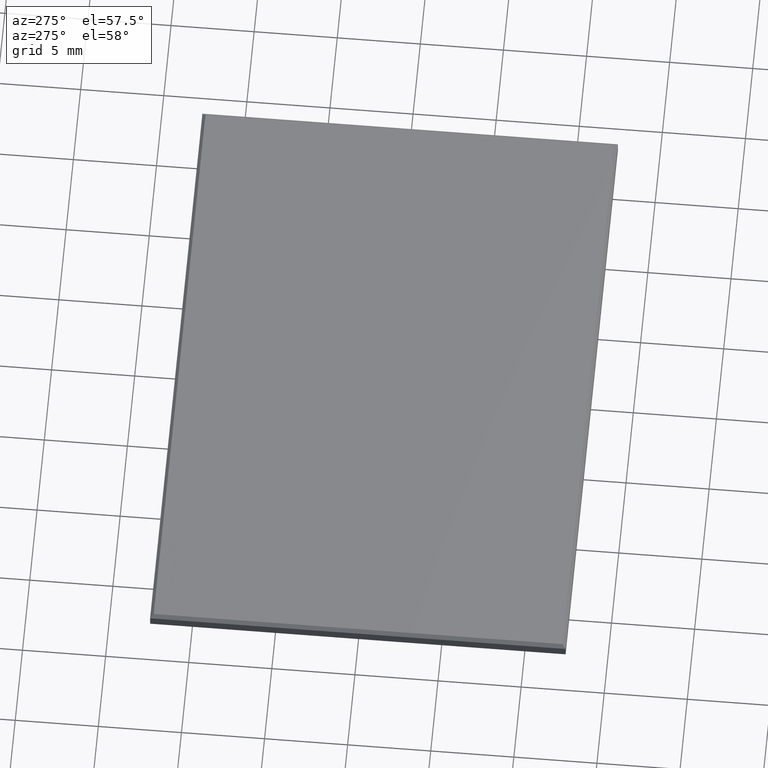
[diagram: clean part render]
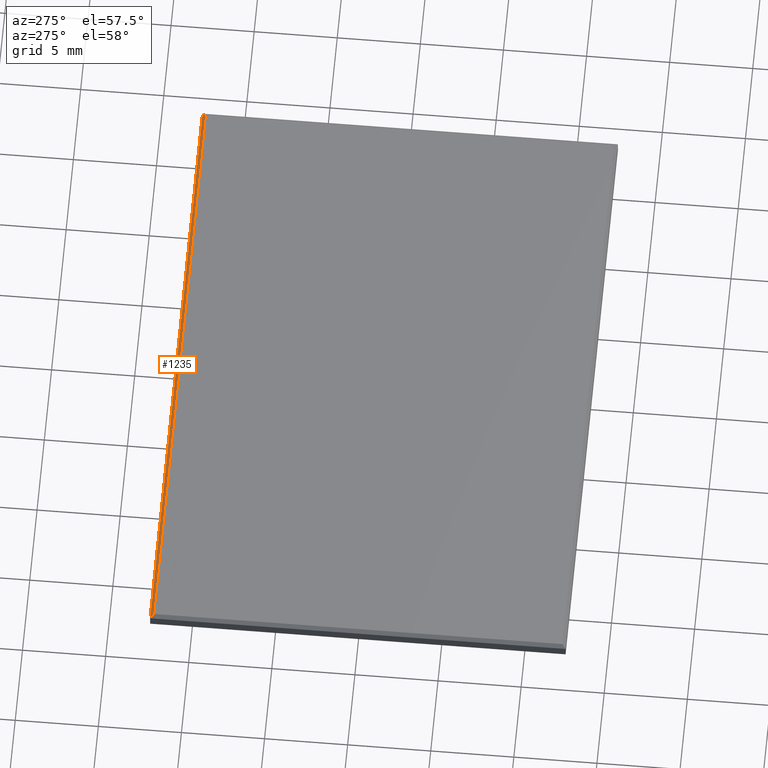
[diagram: same view with one face highlighted and labeled with its STEP entity id]
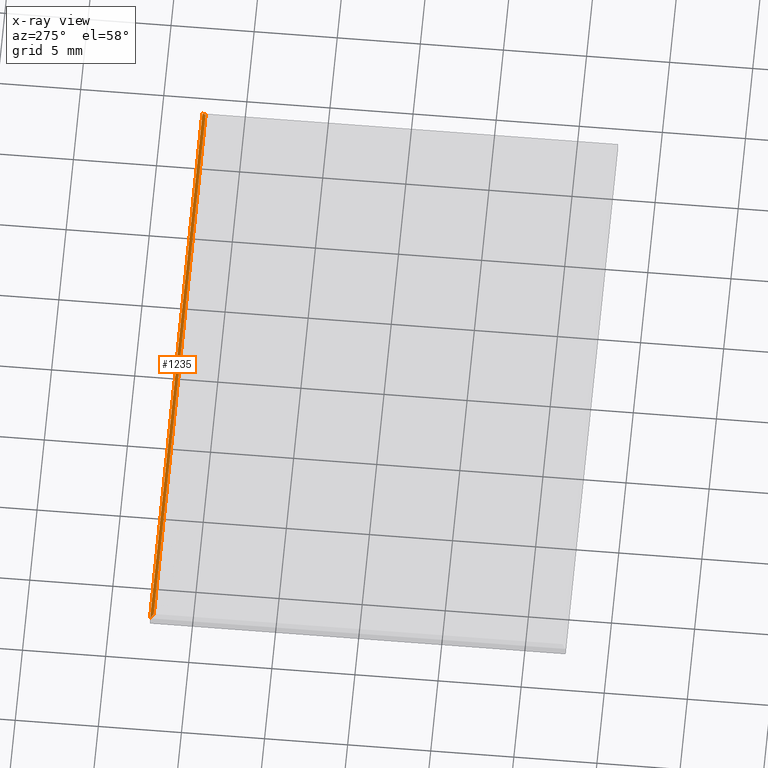
[diagram: x-ray of the same camera — body ghosted, the highlighted face saturated]
A machine part, auxiliary view. The second image highlights one B-rep face of the part: STEP entity #1235.
The next image is the same camera in x-ray: the body ghosted, the highlighted face saturated — about 0% of this face is hidden behind the body in this view.
In plain terms, the highlighted planar face has unit normal (-0, 0.7071, 0.7071).
Its self-contained STEP definition (entity closure, byte-faithful):
#983 = VERTEX_POINT ( 'NONE', #3946 ) ;
#1031 = VERTEX_POINT ( 'NONE', #4073 ) ;
#1136 = EDGE_CURVE ( 'NONE', #1154, #1145, #4347, .T. ) ;
#1145 = VERTEX_POINT ( 'NONE', #4316 ) ;
#1154 = VERTEX_POINT ( 'NONE', #4332 ) ;
#1235 = ADVANCED_FACE ( 'NONE', ( #4616 ), #4619, .T. ) ;
#1236 = ORIENTED_EDGE ( 'NONE', *, *, #1136, .F. ) ;
#1243 = EDGE_CURVE ( 'NONE', #1154, #983, #4660, .T. ) ;
#1255 = EDGE_LOOP ( 'NONE', ( #1280, #1393, #1279, #1236 ) ) ;
#1279 = ORIENTED_EDGE ( 'NONE', *, *, #1381, .F. ) ;
#1280 = ORIENTED_EDGE ( 'NONE', *, *, #1243, .T. ) ;
#1328 = EDGE_CURVE ( 'NONE', #1031, #983, #4881, .T. ) ;
#1381 = EDGE_CURVE ( 'NONE', #1145, #1031, #5115, .T. ) ;
#1393 = ORIENTED_EDGE ( 'NONE', *, *, #1328, .F. ) ;
#3946 = CARTESIAN_POINT ( 'NONE',  ( 17.99999999999999600, 12.50000000000000200, 0.2999999999999942700 ) ) ;
#4073 = CARTESIAN_POINT ( 'NONE',  ( -18.00000000000000400, 12.50000000000000200, 0.2999999999999942700 ) ) ;
#4316 = CARTESIAN_POINT ( 'NONE',  ( -17.79999999999999700, 12.29999999999999700, 0.5000000000000000000 ) ) ;
#4332 = CARTESIAN_POINT ( 'NONE',  ( 17.79999999999999000, 12.29999999999999700, 0.5000000000000000000 ) ) ;
#4344 = DIRECTION ( 'NONE',  ( -1.000000000000000000, 0.0000000000000000000, -0.0000000000000000000 ) ) ;
#4345 = VECTOR ( 'NONE', #4344, 1000.000000000000000 ) ;
#4346 = CARTESIAN_POINT ( 'NONE',  ( -18.00000000000000400, 12.29999999999999700, 0.5000000000000000000 ) ) ;
#4347 = LINE ( 'NONE', #4346, #4345 ) ;
#4614 = AXIS2_PLACEMENT_3D ( 'NONE', #4623, #4622, #4621 ) ;
#4616 = FACE_OUTER_BOUND ( 'NONE', #1255, .T. ) ;
#4619 = PLANE ( 'NONE',  #4614 ) ;
#4621 = DIRECTION ( 'NONE',  ( 1.000000000000000000, 0.0000000000000000000, 0.0000000000000000000 ) ) ;
#4622 = DIRECTION ( 'NONE',  ( -0.0000000000000000000, 0.7071067811865475700, 0.7071067811865475700 ) ) ;
#4623 = CARTESIAN_POINT ( 'NONE',  ( 0.0000000000000000000, 12.29999999999999700, 0.5000000000000000000 ) ) ;
#4657 = DIRECTION ( 'NONE',  ( 0.5773502691896256200, 0.5773502691896258400, -0.5773502691896258400 ) ) ;
#4658 = VECTOR ( 'NONE', #4657, 999.9999999999998900 ) ;
#4659 = CARTESIAN_POINT ( 'NONE',  ( 11.86666666666666200, 6.366666666666668000, 6.433333333333329100 ) ) ;
#4660 = LINE ( 'NONE', #4659, #4658 ) ;
#4817 = CARTESIAN_POINT ( 'NONE',  ( 17.99999999999999600, 12.50000000000000200, 0.2999999999999942700 ) ) ;
#4841 = DIRECTION ( 'NONE',  ( 1.000000000000000000, 0.0000000000000000000, 0.0000000000000000000 ) ) ;
#4879 = VECTOR ( 'NONE', #4841, 1000.000000000000000 ) ;
#4881 = LINE ( 'NONE', #4817, #4879 ) ;
#5107 = DIRECTION ( 'NONE',  ( -0.5773502691896258400, 0.5773502691896257300, -0.5773502691896257300 ) ) ;
#5108 = VECTOR ( 'NONE', #5107, 999.9999999999998900 ) ;
#5109 = CARTESIAN_POINT ( 'NONE',  ( -11.86666666666666200, 6.366666666666664500, 6.433333333333332700 ) ) ;
#5115 = LINE ( 'NONE', #5109, #5108 ) ;